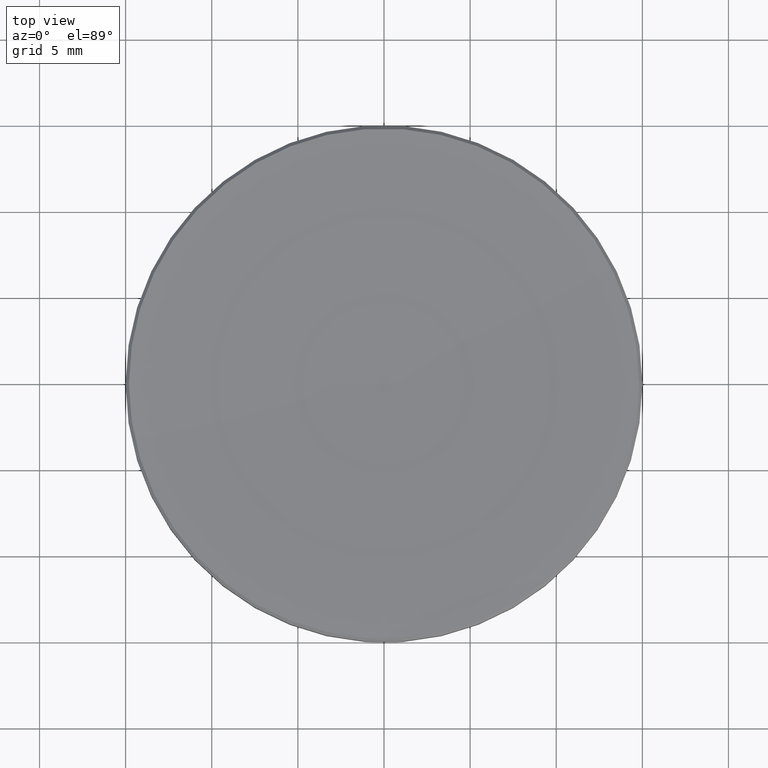
[diagram: clean part render]
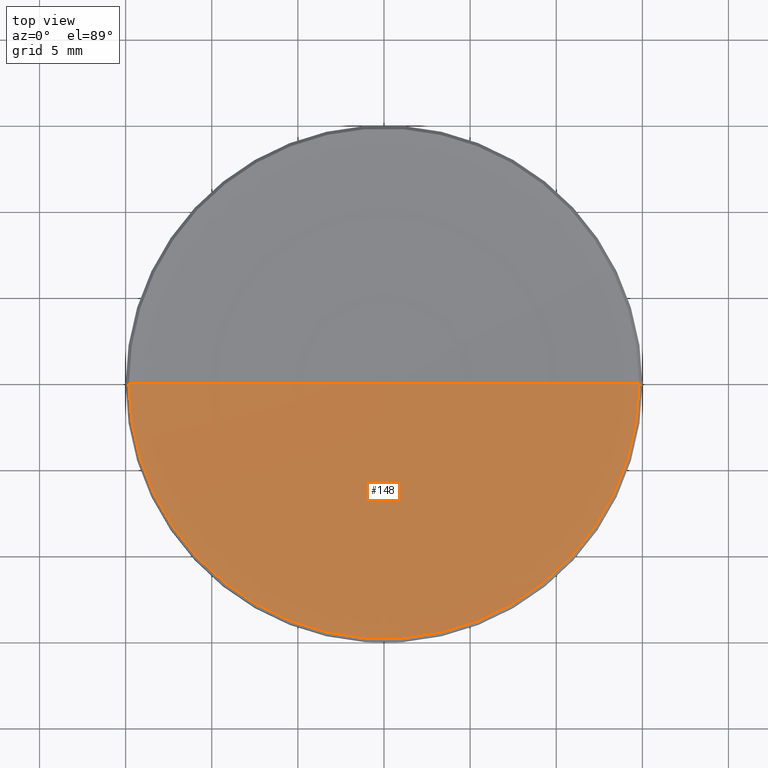
[diagram: same view with one face highlighted and labeled with its STEP entity id]
A machine part, top view. The second image highlights one B-rep face of the part: STEP entity #148.
In plain terms, the highlighted toroidal blend (fillet) surface has major radius 0.0668 mm and minor (blend) radius 258.18 mm.
Its self-contained STEP definition (entity closure, byte-faithful):
#4 = DIRECTION ( 'NONE',  ( 1.224646799147353207E-16, 1.000000000000000000, 0.000000000000000000 ) ) ;
#20 = VERTEX_POINT ( 'NONE', #85 ) ;
#42 = DIRECTION ( 'NONE',  ( 0.000000000000000000, 0.000000000000000000, -1.000000000000000000 ) ) ;
#47 = CIRCLE ( 'NONE', #234, 14.81098008019381673 ) ;
#48 = EDGE_CURVE ( 'NONE', #173, #121, #160, .T. ) ;
#57 = DIRECTION ( 'NONE',  ( 1.000000000000000000, 0.000000000000000000, 0.000000000000000000 ) ) ;
#67 = TOROIDAL_SURFACE ( 'NONE', #70, -0.06682641297565440619, 258.1800000000000068 ) ;
#70 = AXIS2_PLACEMENT_3D ( 'NONE', #241, #164, #57 ) ;
#82 = EDGE_CURVE ( 'NONE', #20, #121, #47, .T. ) ;
#85 = CARTESIAN_POINT ( 'NONE',  ( -14.81098008019427681, 1.813821934744513201E-15, 2.929019919806235883 ) ) ;
#91 = DIRECTION ( 'NONE',  ( -1.000000000000000000, 1.224646799147353207E-16, 0.000000000000000000 ) ) ;
#97 = CIRCLE ( 'NONE', #185, 258.1800000000000068 ) ;
#107 = ORIENTED_EDGE ( 'NONE', *, *, #82, .T. ) ;
#117 = CARTESIAN_POINT ( 'NONE',  ( 0.06682641297565440619, -8.183875274913430883E-18, 260.6799913514417426 ) ) ;
#121 = VERTEX_POINT ( 'NONE', #141 ) ;
#127 = CARTESIAN_POINT ( 'NONE',  ( 0.000000000000000000, 0.000000000000000000, 2.500000000000000000 ) ) ;
#141 = CARTESIAN_POINT ( 'NONE',  ( 14.81098008019427681, 0.000000000000000000, 2.929019919806235883 ) ) ;
#145 = FACE_OUTER_BOUND ( 'NONE', #195, .T. ) ;
#148 = ADVANCED_FACE ( 'NONE', ( #145 ), #67, .F. ) ;
#151 = CARTESIAN_POINT ( 'NONE',  ( -0.06682641297565440619, 0.000000000000000000, 260.6799913514417426 ) ) ;
#160 = CIRCLE ( 'NONE', #211, 258.1800000000000068 ) ;
#164 = DIRECTION ( 'NONE',  ( -0.000000000000000000, -0.000000000000000000, 1.000000000000000000 ) ) ;
#173 = VERTEX_POINT ( 'NONE', #127 ) ;
#185 = AXIS2_PLACEMENT_3D ( 'NONE', #117, #4, #91 ) ;
#189 = CARTESIAN_POINT ( 'NONE',  ( 0.000000000000000000, 0.000000000000000000, 2.929019919806263861 ) ) ;
#195 = EDGE_LOOP ( 'NONE', ( #263, #260, #107 ) ) ;
#196 = DIRECTION ( 'NONE',  ( 0.000000000000000000, -1.000000000000000000, 0.000000000000000000 ) ) ;
#211 = AXIS2_PLACEMENT_3D ( 'NONE', #151, #196, #42 ) ;
#228 = DIRECTION ( 'NONE',  ( 1.000000000000000000, 0.000000000000000000, 0.000000000000000000 ) ) ;
#231 = EDGE_CURVE ( 'NONE', #173, #20, #97, .T. ) ;
#234 = AXIS2_PLACEMENT_3D ( 'NONE', #189, #246, #228 ) ;
#241 = CARTESIAN_POINT ( 'NONE',  ( 0.000000000000000000, 0.000000000000000000, 260.6799913514417426 ) ) ;
#246 = DIRECTION ( 'NONE',  ( -0.000000000000000000, -0.000000000000000000, 1.000000000000000000 ) ) ;
#260 = ORIENTED_EDGE ( 'NONE', *, *, #231, .T. ) ;
#263 = ORIENTED_EDGE ( 'NONE', *, *, #48, .F. ) ;